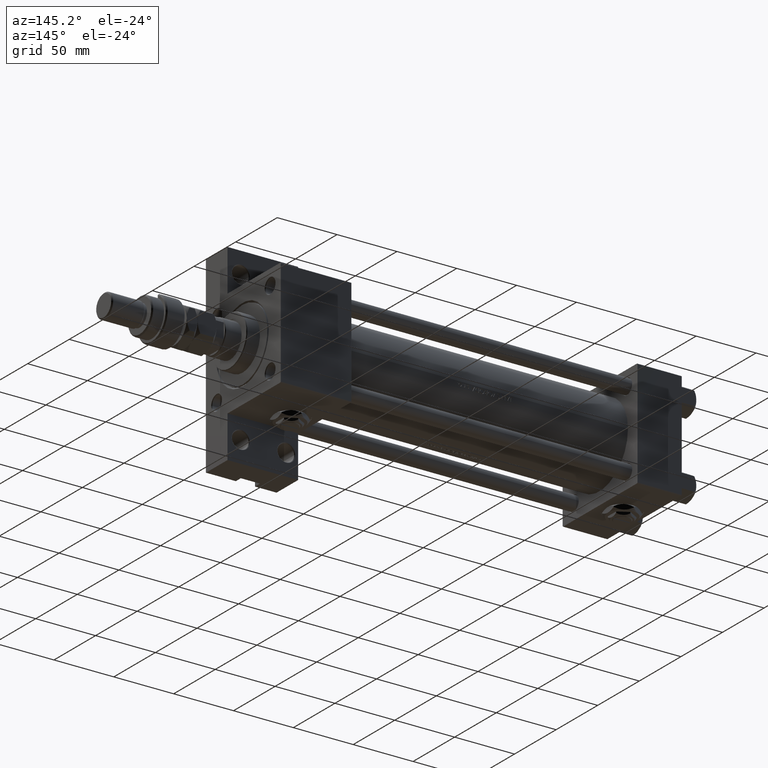
[diagram: clean part render]
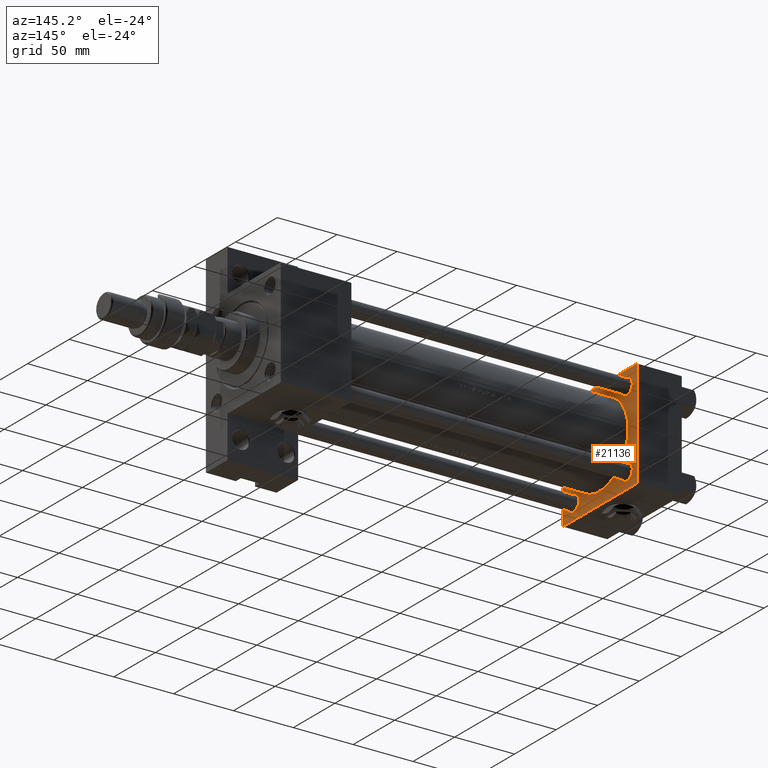
[diagram: same view with one face highlighted and labeled with its STEP entity id]
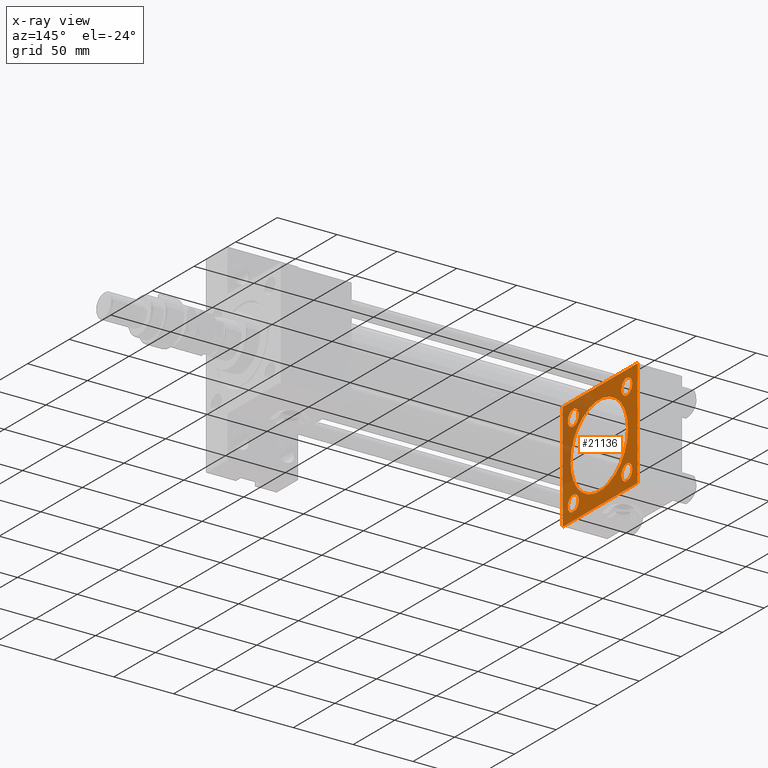
[diagram: x-ray of the same camera — body ghosted, the highlighted face saturated]
A machine part, auxiliary view. The second image highlights one B-rep face of the part: STEP entity #21136.
The next image is the same camera in x-ray: the body ghosted, the highlighted face saturated — about 26% of this face is hidden behind the body in this view.
In plain terms, the highlighted planar face has unit normal (-1, 0, -0).
Its self-contained STEP definition (entity closure, byte-faithful):
#298 = DIRECTION ( 'NONE',  ( 0.000000000000000000, 0.000000000000000000, -1.000000000000000000 ) ) ;
#740 = FACE_BOUND ( 'NONE', #876, .T. ) ;
#876 = EDGE_LOOP ( 'NONE', ( #30178, #49495 ) ) ;
#1394 = ORIENTED_EDGE ( 'NONE', *, *, #52154, .F. ) ;
#1626 = VECTOR ( 'NONE', #39799, 1000.000000000000114 ) ;
#2361 = CARTESIAN_POINT ( 'NONE',  ( 37.00000000000000000, 44.49999999999998579, 45.00000000000001421 ) ) ;
#2793 = CIRCLE ( 'NONE', #40119, 6.500000000000061284 ) ;
#2811 = CARTESIAN_POINT ( 'NONE',  ( 37.00000000000000000, 32.14999999999999147, 38.65000000000006963 ) ) ;
#2916 = VERTEX_POINT ( 'NONE', #34463 ) ;
#3066 = VERTEX_POINT ( 'NONE', #21335 ) ;
#3279 = AXIS2_PLACEMENT_3D ( 'NONE', #49924, #13512, #29711 ) ;
#3290 = CIRCLE ( 'NONE', #17744, 34.49999999999999289 ) ;
#3317 = CARTESIAN_POINT ( 'NONE',  ( 37.00000000000000000, -32.14999999999997726, 32.15000000000001279 ) ) ;
#4696 = VECTOR ( 'NONE', #298, 1000.000000000000000 ) ;
#5084 = ORIENTED_EDGE ( 'NONE', *, *, #30283, .T. ) ;
#5522 = FACE_BOUND ( 'NONE', #16427, .T. ) ;
#5552 = VERTEX_POINT ( 'NONE', #52110 ) ;
#5698 = AXIS2_PLACEMENT_3D ( 'NONE', #18271, #51214, #10560 ) ;
#5869 = CIRCLE ( 'NONE', #43176, 6.499999999999922728 ) ;
#6623 = CARTESIAN_POINT ( 'NONE',  ( 37.00000000000000000, 32.14999999999999147, 32.15000000000000568 ) ) ;
#6641 = EDGE_LOOP ( 'NONE', ( #5084, #9747 ) ) ;
#6933 = DIRECTION ( 'NONE',  ( -1.000000000000000000, 0.000000000000000000, -0.000000000000000000 ) ) ;
#7053 = DIRECTION ( 'NONE',  ( -1.000000000000000000, 0.000000000000000000, -0.000000000000000000 ) ) ;
#7140 = CARTESIAN_POINT ( 'NONE',  ( 37.00000000000000000, 44.99999999999998579, -44.49999999999998579 ) ) ;
#7879 = DIRECTION ( 'NONE',  ( 0.000000000000000000, 0.000000000000000000, 1.000000000000000000 ) ) ;
#8065 = VERTEX_POINT ( 'NONE', #10585 ) ;
#8161 = ORIENTED_EDGE ( 'NONE', *, *, #11047, .F. ) ;
#9229 = CARTESIAN_POINT ( 'NONE',  ( 37.00000000000000000, -32.14999999999997726, 25.65000000000009095 ) ) ;
#9747 = ORIENTED_EDGE ( 'NONE', *, *, #12161, .T. ) ;
#10164 = VERTEX_POINT ( 'NONE', #9229 ) ;
#10560 = DIRECTION ( 'NONE',  ( 0.000000000000000000, 0.000000000000000000, 1.000000000000000000 ) ) ;
#10585 = CARTESIAN_POINT ( 'NONE',  ( 37.00000000000000000, -32.14999999999997726, -38.64999999999993463 ) ) ;
#11047 = EDGE_CURVE ( 'NONE', #14274, #31976, #13225, .T. ) ;
#11188 = ORIENTED_EDGE ( 'NONE', *, *, #23353, .T. ) ;
#11437 = CARTESIAN_POINT ( 'NONE',  ( 37.00000000000000000, 32.14999999999999147, -32.15000000000000568 ) ) ;
#11971 = DIRECTION ( 'NONE',  ( 1.000000000000000000, -0.000000000000000000, 0.000000000000000000 ) ) ;
#12137 = VECTOR ( 'NONE', #13495, 1000.000000000000000 ) ;
#12161 = EDGE_CURVE ( 'NONE', #52027, #10164, #42200, .T. ) ;
#12545 = DIRECTION ( 'NONE',  ( 0.000000000000000000, 0.000000000000000000, 1.000000000000000000 ) ) ;
#12632 = CARTESIAN_POINT ( 'NONE',  ( 37.00000000000000000, 32.14999999999999147, -32.15000000000000568 ) ) ;
#12669 = AXIS2_PLACEMENT_3D ( 'NONE', #40626, #28954, #45170 ) ;
#12905 = DIRECTION ( 'NONE',  ( 0.000000000000000000, 7.709882115452476934E-17, -1.000000000000000000 ) ) ;
#13225 = LINE ( 'NONE', #29432, #12137 ) ;
#13239 = FACE_BOUND ( 'NONE', #35212, .T. ) ;
#13495 = DIRECTION ( 'NONE',  ( 0.000000000000000000, -1.000000000000000000, -1.541976423090495633E-16 ) ) ;
#13512 = DIRECTION ( 'NONE',  ( -1.000000000000000000, 0.000000000000000000, -0.000000000000000000 ) ) ;
#14274 = VERTEX_POINT ( 'NONE', #50518 ) ;
#15135 = EDGE_CURVE ( 'NONE', #23939, #17475, #50029, .T. ) ;
#15231 = AXIS2_PLACEMENT_3D ( 'NONE', #6623, #30823, #47025 ) ;
#15559 = DIRECTION ( 'NONE',  ( 0.000000000000000000, 0.000000000000000000, 1.000000000000000000 ) ) ;
#15588 = DIRECTION ( 'NONE',  ( -1.000000000000000000, 0.000000000000000000, -0.000000000000000000 ) ) ;
#16156 = EDGE_CURVE ( 'NONE', #8065, #25669, #45006, .T. ) ;
#16418 = ORIENTED_EDGE ( 'NONE', *, *, #23409, .T. ) ;
#16427 = EDGE_LOOP ( 'NONE', ( #37284, #45913 ) ) ;
#16803 = LINE ( 'NONE', #23726, #44116 ) ;
#16974 = CARTESIAN_POINT ( 'NONE',  ( 37.00000000000000711, 4.225031457058366556E-15, -35.50000000000000711 ) ) ;
#17037 = ORIENTED_EDGE ( 'NONE', *, *, #22956, .T. ) ;
#17475 = VERTEX_POINT ( 'NONE', #37055 ) ;
#17744 = AXIS2_PLACEMENT_3D ( 'NONE', #28184, #11971, #41182 ) ;
#18089 = DIRECTION ( 'NONE',  ( 0.000000000000000000, 0.000000000000000000, 1.000000000000000000 ) ) ;
#18271 = CARTESIAN_POINT ( 'NONE',  ( 37.00000000000000000, -32.14999999999997726, 32.15000000000001279 ) ) ;
#18321 = CARTESIAN_POINT ( 'NONE',  ( 37.00000000000000000, 32.14999999999999147, -25.64999999999994529 ) ) ;
#18440 = VERTEX_POINT ( 'NONE', #27696 ) ;
#18637 = CIRCLE ( 'NONE', #40694, 6.500000000000061284 ) ;
#19444 = CARTESIAN_POINT ( 'NONE',  ( 37.00000000000000000, -44.49999999999998579, -45.00000000000000000 ) ) ;
#19474 = CARTESIAN_POINT ( 'NONE',  ( 37.00000000000000000, 44.49999999999998579, 45.00000000000001421 ) ) ;
#19665 = EDGE_CURVE ( 'NONE', #24434, #23264, #16803, .T. ) ;
#19937 = LINE ( 'NONE', #44129, #23738 ) ;
#19968 = LINE ( 'NONE', #19444, #29325 ) ;
#20309 = VECTOR ( 'NONE', #12905, 1000.000000000000000 ) ;
#20604 = DIRECTION ( 'NONE',  ( 0.000000000000000000, 0.000000000000000000, 1.000000000000000000 ) ) ;
#21136 = ADVANCED_FACE ( 'NONE', ( #740, #37957, #38206, #13239, #5522, #29445 ), #45661, .F. ) ;
#21188 = CIRCLE ( 'NONE', #15231, 6.500000000000061284 ) ;
#21329 = CARTESIAN_POINT ( 'NONE',  ( 37.00000000000000000, -32.14999999999997726, -32.15000000000001279 ) ) ;
#21335 = CARTESIAN_POINT ( 'NONE',  ( 37.00000000000000000, 32.14999999999999147, -38.65000000000006963 ) ) ;
#21887 = EDGE_CURVE ( 'NONE', #23264, #5552, #19937, .T. ) ;
#21892 = EDGE_CURVE ( 'NONE', #22224, #3066, #18637, .T. ) ;
#22224 = VERTEX_POINT ( 'NONE', #18321 ) ;
#22831 = CARTESIAN_POINT ( 'NONE',  ( 37.00000000000000000, 32.14999999999999147, 32.15000000000000568 ) ) ;
#22956 = EDGE_CURVE ( 'NONE', #14274, #35613, #27592, .T. ) ;
#23264 = VERTEX_POINT ( 'NONE', #43218 ) ;
#23353 = EDGE_CURVE ( 'NONE', #3066, #22224, #33018, .T. ) ;
#23409 = EDGE_CURVE ( 'NONE', #5552, #32346, #32822, .T. ) ;
#23712 = EDGE_CURVE ( 'NONE', #18440, #49764, #21188, .T. ) ;
#23722 = LINE ( 'NONE', #19474, #47713 ) ;
#23726 = CARTESIAN_POINT ( 'NONE',  ( 37.00000000000000000, 44.99999999999998579, 45.00000000000001421 ) ) ;
#23738 = VECTOR ( 'NONE', #27135, 1000.000000000000114 ) ;
#23939 = VERTEX_POINT ( 'NONE', #16974 ) ;
#23968 = DIRECTION ( 'NONE',  ( 0.000000000000000000, 0.7071067811865474617, -0.7071067811865474617 ) ) ;
#24416 = CARTESIAN_POINT ( 'NONE',  ( 37.00000000000000000, 44.99999999999998579, -44.49999999999995737 ) ) ;
#24434 = VERTEX_POINT ( 'NONE', #2361 ) ;
#25009 = LINE ( 'NONE', #36721, #4696 ) ;
#25669 = VERTEX_POINT ( 'NONE', #38711 ) ;
#27135 = DIRECTION ( 'NONE',  ( -0.000000000000000000, -0.7071067811865425767, -0.7071067811865524577 ) ) ;
#27592 = LINE ( 'NONE', #7140, #1626 ) ;
#27627 = ORIENTED_EDGE ( 'NONE', *, *, #52039, .T. ) ;
#27696 = CARTESIAN_POINT ( 'NONE',  ( 37.00000000000000000, 32.14999999999999147, 25.64999999999994529 ) ) ;
#28184 = CARTESIAN_POINT ( 'NONE',  ( 37.00000000000000711, 0.000000000000000000, -1.000000000000007772 ) ) ;
#28954 = DIRECTION ( 'NONE',  ( 1.000000000000000000, -0.000000000000000000, 0.000000000000000000 ) ) ;
#29012 = EDGE_LOOP ( 'NONE', ( #8161, #17037, #1394, #30676, #40788, #42078, #16418, #27627 ) ) ;
#29325 = VECTOR ( 'NONE', #23968, 1000.000000000000114 ) ;
#29432 = CARTESIAN_POINT ( 'NONE',  ( 37.00000000000000000, 44.99999999999998579, -44.99999999999998579 ) ) ;
#29445 = FACE_OUTER_BOUND ( 'NONE', #29012, .T. ) ;
#29711 = DIRECTION ( 'NONE',  ( -0.000000000000000000, 0.000000000000000000, 1.000000000000000000 ) ) ;
#30178 = ORIENTED_EDGE ( 'NONE', *, *, #16156, .T. ) ;
#30283 = EDGE_CURVE ( 'NONE', #10164, #52027, #5869, .T. ) ;
#30676 = ORIENTED_EDGE ( 'NONE', *, *, #40935, .T. ) ;
#30823 = DIRECTION ( 'NONE',  ( -1.000000000000000000, 0.000000000000000000, -0.000000000000000000 ) ) ;
#31957 = DIRECTION ( 'NONE',  ( 0.000000000000000000, -1.000000000000000000, -1.541976423090495387E-16 ) ) ;
#31976 = VERTEX_POINT ( 'NONE', #38325 ) ;
#32346 = VERTEX_POINT ( 'NONE', #46433 ) ;
#32822 = LINE ( 'NONE', #49040, #20309 ) ;
#33018 = CIRCLE ( 'NONE', #44049, 6.500000000000061284 ) ;
#33715 = EDGE_LOOP ( 'NONE', ( #11188, #36730 ) ) ;
#34463 = CARTESIAN_POINT ( 'NONE',  ( 37.00000000000000000, 44.99999999999998579, 44.50000000000001421 ) ) ;
#35212 = EDGE_LOOP ( 'NONE', ( #42680, #45966 ) ) ;
#35613 = VERTEX_POINT ( 'NONE', #24416 ) ;
#35960 = DIRECTION ( 'NONE',  ( 0.000000000000000000, -0.7071067811865474617, 0.7071067811865474617 ) ) ;
#36040 = DIRECTION ( 'NONE',  ( -1.000000000000000000, 0.000000000000000000, -0.000000000000000000 ) ) ;
#36721 = CARTESIAN_POINT ( 'NONE',  ( 37.00000000000000000, 44.99999999999998579, 45.00000000000001421 ) ) ;
#36730 = ORIENTED_EDGE ( 'NONE', *, *, #21892, .T. ) ;
#36840 = CARTESIAN_POINT ( 'NONE',  ( 37.00000000000000000, -32.14999999999997726, -32.15000000000001279 ) ) ;
#37055 = CARTESIAN_POINT ( 'NONE',  ( 37.00000000000000711, 0.000000000000000000, 33.49999999999998579 ) ) ;
#37284 = ORIENTED_EDGE ( 'NONE', *, *, #47323, .F. ) ;
#37548 = DIRECTION ( 'NONE',  ( -1.000000000000000000, 0.000000000000000000, -0.000000000000000000 ) ) ;
#37957 = FACE_BOUND ( 'NONE', #33715, .T. ) ;
#38206 = FACE_BOUND ( 'NONE', #6641, .T. ) ;
#38325 = CARTESIAN_POINT ( 'NONE',  ( 37.00000000000000000, -44.49999999999995737, -45.00000000000000000 ) ) ;
#38711 = CARTESIAN_POINT ( 'NONE',  ( 37.00000000000000000, -32.14999999999997726, -25.65000000000009095 ) ) ;
#39339 = DIRECTION ( 'NONE',  ( 0.000000000000000000, 0.000000000000000000, 1.000000000000000000 ) ) ;
#39622 = CARTESIAN_POINT ( 'NONE',  ( 37.00000000000000000, -32.14999999999997726, 38.64999999999993463 ) ) ;
#39773 = AXIS2_PLACEMENT_3D ( 'NONE', #21329, #37548, #12545 ) ;
#39799 = DIRECTION ( 'NONE',  ( -0.000000000000000000, 0.7071067811865474617, 0.7071067811865474617 ) ) ;
#40119 = AXIS2_PLACEMENT_3D ( 'NONE', #22831, #47021, #18089 ) ;
#40626 = CARTESIAN_POINT ( 'NONE',  ( 37.00000000000000711, 0.000000000000000000, -1.000000000000007772 ) ) ;
#40694 = AXIS2_PLACEMENT_3D ( 'NONE', #11437, #6933, #39339 ) ;
#40788 = ORIENTED_EDGE ( 'NONE', *, *, #19665, .T. ) ;
#40935 = EDGE_CURVE ( 'NONE', #2916, #24434, #23722, .T. ) ;
#41182 = DIRECTION ( 'NONE',  ( 0.000000000000000000, 0.000000000000000000, 1.000000000000000000 ) ) ;
#42078 = ORIENTED_EDGE ( 'NONE', *, *, #21887, .T. ) ;
#42200 = CIRCLE ( 'NONE', #5698, 6.499999999999922728 ) ;
#42251 = EDGE_CURVE ( 'NONE', #49764, #18440, #2793, .T. ) ;
#42680 = ORIENTED_EDGE ( 'NONE', *, *, #23712, .T. ) ;
#43176 = AXIS2_PLACEMENT_3D ( 'NONE', #3317, #7053, #15559 ) ;
#43218 = CARTESIAN_POINT ( 'NONE',  ( 37.00000000000000000, -44.49999999999995737, 45.00000000000000000 ) ) ;
#44049 = AXIS2_PLACEMENT_3D ( 'NONE', #12632, #36040, #20604 ) ;
#44116 = VECTOR ( 'NONE', #31957, 1000.000000000000000 ) ;
#44129 = CARTESIAN_POINT ( 'NONE',  ( 37.00000000000000000, -45.00000000000000711, 44.49999999999997158 ) ) ;
#45006 = CIRCLE ( 'NONE', #50926, 6.499999999999922728 ) ;
#45170 = DIRECTION ( 'NONE',  ( 0.000000000000000000, 0.000000000000000000, 1.000000000000000000 ) ) ;
#45661 = PLANE ( 'NONE',  #3279 ) ;
#45913 = ORIENTED_EDGE ( 'NONE', *, *, #15135, .F. ) ;
#45966 = ORIENTED_EDGE ( 'NONE', *, *, #42251, .T. ) ;
#46433 = CARTESIAN_POINT ( 'NONE',  ( 37.00000000000000000, -45.00000000000000000, -44.49999999999995737 ) ) ;
#46560 = CIRCLE ( 'NONE', #39773, 6.499999999999922728 ) ;
#47021 = DIRECTION ( 'NONE',  ( -1.000000000000000000, 0.000000000000000000, -0.000000000000000000 ) ) ;
#47025 = DIRECTION ( 'NONE',  ( 0.000000000000000000, 0.000000000000000000, 1.000000000000000000 ) ) ;
#47032 = EDGE_CURVE ( 'NONE', #25669, #8065, #46560, .T. ) ;
#47323 = EDGE_CURVE ( 'NONE', #17475, #23939, #3290, .T. ) ;
#47713 = VECTOR ( 'NONE', #35960, 1000.000000000000114 ) ;
#49040 = CARTESIAN_POINT ( 'NONE',  ( 37.00000000000000000, -45.00000000000000711, 45.00000000000000000 ) ) ;
#49495 = ORIENTED_EDGE ( 'NONE', *, *, #47032, .T. ) ;
#49764 = VERTEX_POINT ( 'NONE', #2811 ) ;
#49924 = CARTESIAN_POINT ( 'NONE',  ( 37.00000000000000000, 0.000000000000000000, 0.000000000000000000 ) ) ;
#50029 = CIRCLE ( 'NONE', #12669, 34.49999999999999289 ) ;
#50518 = CARTESIAN_POINT ( 'NONE',  ( 37.00000000000000000, 44.49999999999998579, -44.99999999999998579 ) ) ;
#50926 = AXIS2_PLACEMENT_3D ( 'NONE', #36840, #15588, #7879 ) ;
#51214 = DIRECTION ( 'NONE',  ( -1.000000000000000000, 0.000000000000000000, -0.000000000000000000 ) ) ;
#52027 = VERTEX_POINT ( 'NONE', #39622 ) ;
#52039 = EDGE_CURVE ( 'NONE', #32346, #31976, #19968, .T. ) ;
#52110 = CARTESIAN_POINT ( 'NONE',  ( 37.00000000000000000, -45.00000000000000711, 44.49999999999997158 ) ) ;
#52154 = EDGE_CURVE ( 'NONE', #2916, #35613, #25009, .T. ) ;